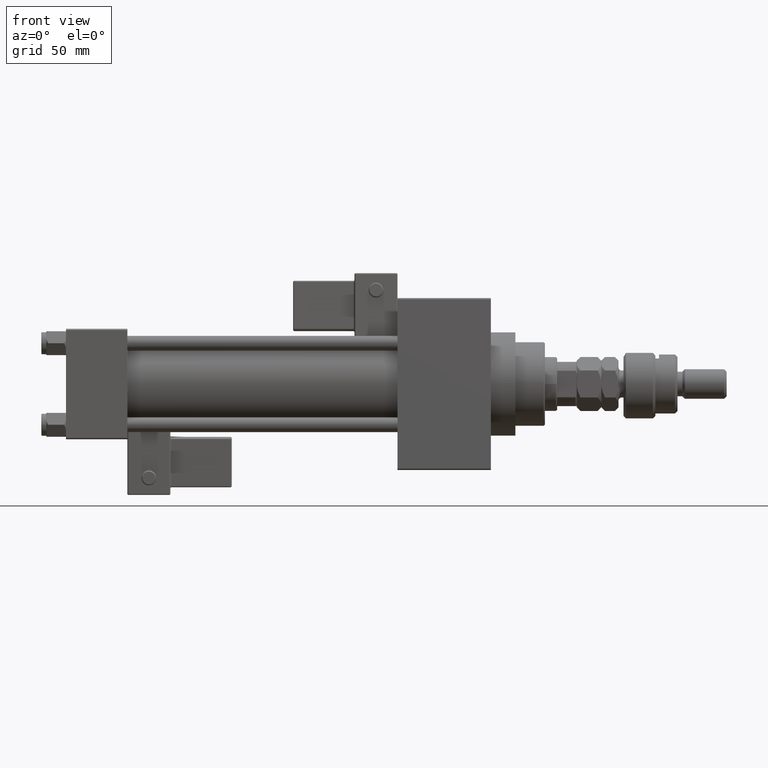
[diagram: clean part render]
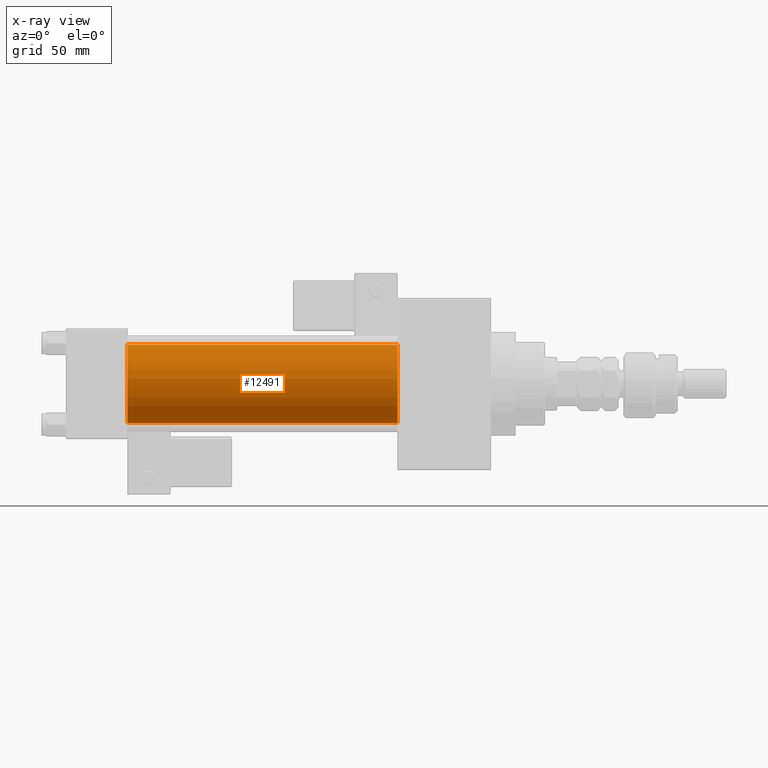
[diagram: x-ray — body ghosted, one internal face saturated and labeled with its STEP entity id]
A machine part, front view, then the same camera in x-ray: the body is ghosted and one INTERNAL B-rep face — a face not visible from any outside direction — is saturated and labeled: STEP entity #12491.
In plain terms, the highlighted cylindrical surface (partial cylindrical patch) has radius 16 mm, axis along (-1, -0, -0).
Its self-contained STEP definition (entity closure, byte-faithful):
#2119 = DIRECTION ( 'NONE',  ( 0.000000000000000000, 0.000000000000000000, 1.000000000000000000 ) ) ;
#2902 = AXIS2_PLACEMENT_3D ( 'NONE', #40186, #36066, #2119 ) ;
#4230 = VERTEX_POINT ( 'NONE', #14479 ) ;
#5631 = CARTESIAN_POINT ( 'NONE',  ( 25.00000000000000000, -6.426503353294456087E-16, -16.00000000000000000 ) ) ;
#6238 = CYLINDRICAL_SURFACE ( 'NONE', #2902, 16.00000000000000000 ) ;
#7190 = CARTESIAN_POINT ( 'NONE',  ( 135.0000000000000000, -6.426503353294456087E-16, -16.00000000000000000 ) ) ;
#7442 = VERTEX_POINT ( 'NONE', #5631 ) ;
#8941 = CIRCLE ( 'NONE', #47428, 16.00000000000000000 ) ;
#9504 = DIRECTION ( 'NONE',  ( 1.000000000000000000, 0.000000000000000000, 0.000000000000000000 ) ) ;
#10981 = DIRECTION ( 'NONE',  ( 1.000000000000000000, 0.000000000000000000, 0.000000000000000000 ) ) ;
#11633 = EDGE_LOOP ( 'NONE', ( #23806, #25001, #31832, #13745 ) ) ;
#12491 = ADVANCED_FACE ( 'NONE', ( #43774 ), #6238, .F. ) ;
#13745 = ORIENTED_EDGE ( 'NONE', *, *, #20353, .F. ) ;
#14171 = DIRECTION ( 'NONE',  ( 0.000000000000000000, 0.000000000000000000, -1.000000000000000000 ) ) ;
#14479 = CARTESIAN_POINT ( 'NONE',  ( 135.0000000000000000, -6.426503353294456087E-16, -16.00000000000000000 ) ) ;
#14890 = DIRECTION ( 'NONE',  ( -1.000000000000000000, -0.000000000000000000, -0.000000000000000000 ) ) ;
#15159 = LINE ( 'NONE', #7190, #42245 ) ;
#20353 = EDGE_CURVE ( 'NONE', #34334, #22581, #53869, .T. ) ;
#22581 = VERTEX_POINT ( 'NONE', #47201 ) ;
#23806 = ORIENTED_EDGE ( 'NONE', *, *, #39349, .T. ) ;
#25001 = ORIENTED_EDGE ( 'NONE', *, *, #35304, .T. ) ;
#28642 = CARTESIAN_POINT ( 'NONE',  ( 135.0000000000000000, -2.602085213965210642E-15, 16.00000000000000000 ) ) ;
#29404 = AXIS2_PLACEMENT_3D ( 'NONE', #34978, #9504, #14171 ) ;
#31810 = CARTESIAN_POINT ( 'NONE',  ( 135.0000000000000000, -2.602085213965210642E-15, 0.000000000000000000 ) ) ;
#31832 = ORIENTED_EDGE ( 'NONE', *, *, #51799, .F. ) ;
#32076 = DIRECTION ( 'NONE',  ( 0.000000000000000000, 0.000000000000000000, -1.000000000000000000 ) ) ;
#34334 = VERTEX_POINT ( 'NONE', #38071 ) ;
#34978 = CARTESIAN_POINT ( 'NONE',  ( 25.00000000000000000, -2.602085213965210642E-15, 0.000000000000000000 ) ) ;
#35304 = EDGE_CURVE ( 'NONE', #4230, #7442, #15159, .T. ) ;
#36066 = DIRECTION ( 'NONE',  ( -1.000000000000000000, -0.000000000000000000, -0.000000000000000000 ) ) ;
#38071 = CARTESIAN_POINT ( 'NONE',  ( 135.0000000000000000, -2.602085213965210642E-15, 16.00000000000000000 ) ) ;
#39349 = EDGE_CURVE ( 'NONE', #34334, #4230, #8941, .T. ) ;
#40186 = CARTESIAN_POINT ( 'NONE',  ( 135.0000000000000000, -2.602085213965210642E-15, 0.000000000000000000 ) ) ;
#42245 = VECTOR ( 'NONE', #14890, 1000.000000000000000 ) ;
#43774 = FACE_OUTER_BOUND ( 'NONE', #11633, .T. ) ;
#45935 = DIRECTION ( 'NONE',  ( -1.000000000000000000, -0.000000000000000000, -0.000000000000000000 ) ) ;
#47201 = CARTESIAN_POINT ( 'NONE',  ( 25.00000000000000000, -2.602085213965210642E-15, 16.00000000000000000 ) ) ;
#47428 = AXIS2_PLACEMENT_3D ( 'NONE', #31810, #10981, #32076 ) ;
#51799 = EDGE_CURVE ( 'NONE', #22581, #7442, #53032, .T. ) ;
#52181 = VECTOR ( 'NONE', #45935, 1000.000000000000000 ) ;
#53032 = CIRCLE ( 'NONE', #29404, 16.00000000000000000 ) ;
#53869 = LINE ( 'NONE', #28642, #52181 ) ;